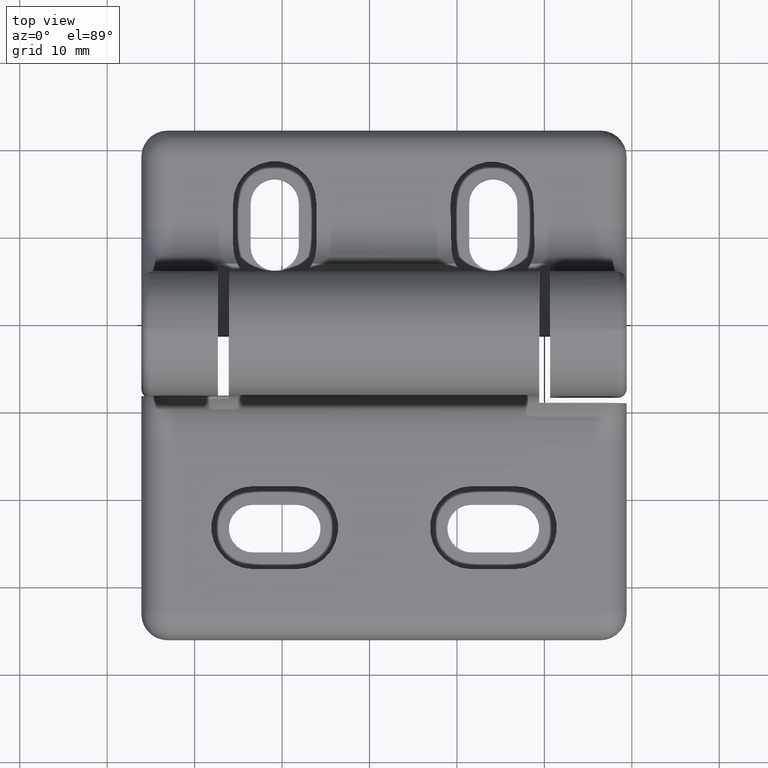
[diagram: clean part render]
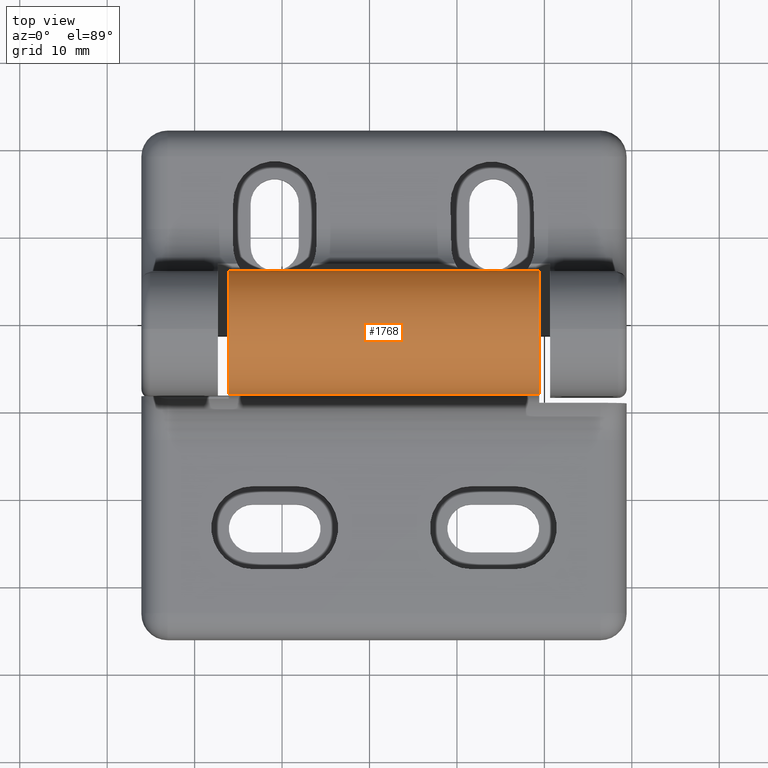
[diagram: same view with one face highlighted and labeled with its STEP entity id]
A machine part, top view. The second image highlights one B-rep face of the part: STEP entity #1768.
In plain terms, the highlighted cylindrical surface (partial cylindrical patch) has radius 7.1 mm, axis along (1, 0, 0).
Its self-contained STEP definition (entity closure, byte-faithful):
#195=FACE_OUTER_BOUND('',#309,.T.);
#309=EDGE_LOOP('',(#1505,#1506,#1507,#1508));
#452=LINE('',#3110,#594);
#453=LINE('',#3113,#595);
#594=VECTOR('',#2398,35.5);
#595=VECTOR('',#2401,35.5);
#701=CIRCLE('',#1945,7.1);
#702=CIRCLE('',#1946,7.1);
#855=VERTEX_POINT('',#3106);
#856=VERTEX_POINT('',#3107);
#857=VERTEX_POINT('',#3109);
#858=VERTEX_POINT('',#3111);
#1083=EDGE_CURVE('',#855,#856,#701,.T.);
#1084=EDGE_CURVE('',#856,#857,#452,.T.);
#1085=EDGE_CURVE('',#857,#858,#702,.T.);
#1086=EDGE_CURVE('',#855,#858,#453,.T.);
#1505=ORIENTED_EDGE('',*,*,#1083,.T.);
#1506=ORIENTED_EDGE('',*,*,#1084,.T.);
#1507=ORIENTED_EDGE('',*,*,#1085,.T.);
#1508=ORIENTED_EDGE('',*,*,#1086,.F.);
#1686=CYLINDRICAL_SURFACE('',#1944,7.1);
#1768=ADVANCED_FACE('',(#195),#1686,.T.);
#1944=AXIS2_PLACEMENT_3D('',#3105,#2394,#2395);
#1945=AXIS2_PLACEMENT_3D('',#3108,#2396,#2397);
#1946=AXIS2_PLACEMENT_3D('',#3112,#2399,#2400);
#2394=DIRECTION('center_axis',(1.,0.,0.));
#2395=DIRECTION('ref_axis',(0.,0.,1.));
#2396=DIRECTION('center_axis',(1.,0.,0.));
#2397=DIRECTION('ref_axis',(0.,-1.964391E-13,-1.));
#2398=DIRECTION('',(1.,0.,0.));
#2399=DIRECTION('center_axis',(-1.,0.,0.));
#2400=DIRECTION('ref_axis',(0.,1.,0.));
#2401=DIRECTION('',(1.,0.,0.));
#3105=CARTESIAN_POINT('Origin',(-7.75000001000001,22.15,15.9));
#3106=CARTESIAN_POINT('',(-7.75000000000001,22.1000767891923,8.80017551815381));
#3107=CARTESIAN_POINT('',(-7.75000000000001,15.05,15.9));
#3108=CARTESIAN_POINT('Origin',(-7.75000000000001,22.15,15.9));
#3109=CARTESIAN_POINT('',(27.75,15.05,15.9));
#3110=CARTESIAN_POINT('',(-7.75000000000001,15.05,15.9));
#3111=CARTESIAN_POINT('',(27.75,22.1000767891923,8.80017551815381));
#3112=CARTESIAN_POINT('Origin',(27.75,22.15,15.9));
#3113=CARTESIAN_POINT('',(-7.75000000000001,22.1000767891923,8.80017551815381));